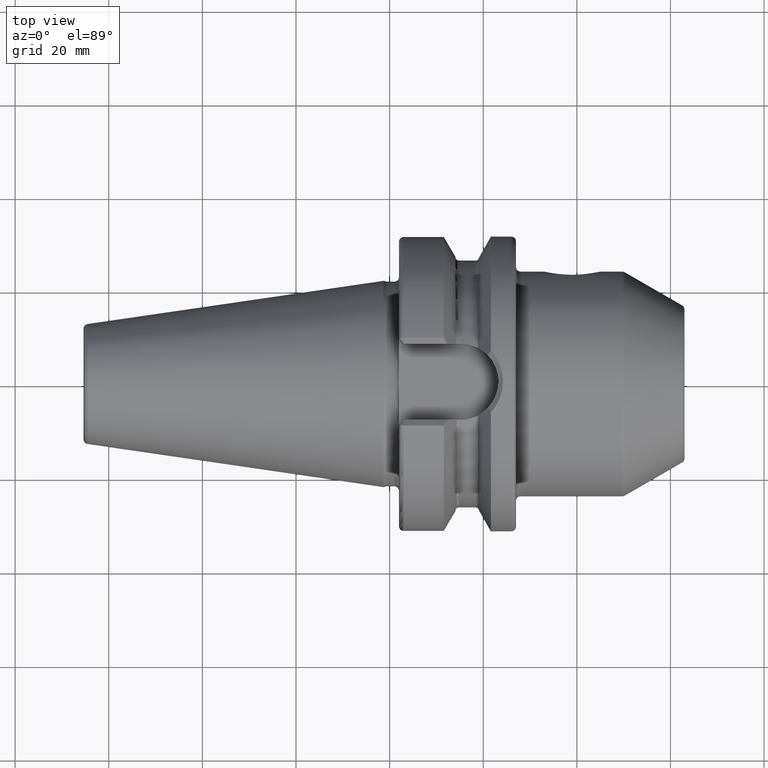
[diagram: clean part render]
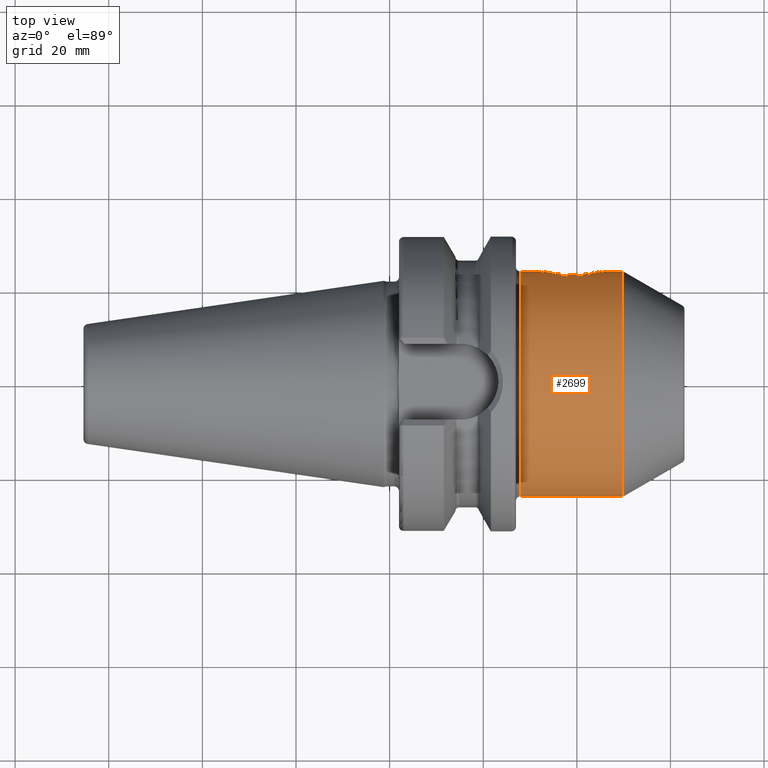
[diagram: same view with one face highlighted and labeled with its STEP entity id]
A machine part, top view. The second image highlights one B-rep face of the part: STEP entity #2699.
In plain terms, the highlighted cylindrical surface (partial cylindrical patch) has radius 24 mm, axis along (1, 0, 0).
Its self-contained STEP definition (entity closure, byte-faithful):
#856=CARTESIAN_POINT('',(4.973205080757E1,0.E0,0.E0));
#857=DIRECTION('',(-1.E0,0.E0,0.E0));
#858=DIRECTION('',(0.E0,-1.E0,0.E0));
#859=AXIS2_PLACEMENT_3D('',#856,#857,#858);
#861=CARTESIAN_POINT('',(2.8E1,0.E0,0.E0));
#862=DIRECTION('',(1.E0,0.E0,0.E0));
#863=DIRECTION('',(0.E0,1.E0,0.E0));
#864=AXIS2_PLACEMENT_3D('',#861,#862,#863);
#866=CARTESIAN_POINT('',(4.5E1,2.4E1,0.E0));
#867=CARTESIAN_POINT('',(4.5E1,2.4E1,3.668511090384E-1));
#868=CARTESIAN_POINT('',(4.493430291122E1,2.398343549512E1,1.090744288177E0));
#869=CARTESIAN_POINT('',(4.463170178380E1,2.390958246924E1,2.167808742937E0));
#870=CARTESIAN_POINT('',(4.413762659424E1,2.379676587072E1,3.165700197363E0));
#871=CARTESIAN_POINT('',(4.345994956941E1,2.365818524583E1,4.065373364471E0));
#872=CARTESIAN_POINT('',(4.263360409742E1,2.351466126429E1,4.818489201602E0));
#873=CARTESIAN_POINT('',(4.167271369838E1,2.338406388581E1,5.410237810502E0));
#874=CARTESIAN_POINT('',(4.064188429797E1,2.328768841151E1,5.806267129186E0));
#875=CARTESIAN_POINT('',(3.954710915606E1,2.323568156105E1,6.008705901759E0));
#876=CARTESIAN_POINT('',(3.845376052039E1,2.323565717152E1,6.008801998323E0));
#877=CARTESIAN_POINT('',(3.735879989026E1,2.328764316624E1,5.806439499221E0));
#878=CARTESIAN_POINT('',(3.632824707715E1,2.338394951438E1,5.410742200349E0));
#879=CARTESIAN_POINT('',(3.536671825619E1,2.351461233329E1,4.818698613390E0));
#880=CARTESIAN_POINT('',(3.454108651352E1,2.365799074726E1,4.066507728899E0));
#881=CARTESIAN_POINT('',(3.386254694974E1,2.379672294068E1,3.166045267208E0));
#882=CARTESIAN_POINT('',(3.336859926991E1,2.390951268291E1,2.168587725770E0));
#883=CARTESIAN_POINT('',(3.306565124648E1,2.398344554754E1,1.090744375021E0));
#884=CARTESIAN_POINT('',(3.3E1,2.4E1,3.668392981218E-1));
#885=CARTESIAN_POINT('',(3.3E1,2.4E1,0.E0));
#902=DIRECTION('',(-1.E0,0.E0,1.360115647069E-12));
#903=VECTOR('',#902,4.732050807569E0);
#904=CARTESIAN_POINT('',(4.973205080757E1,2.4E1,-6.434666769941E-12));
#905=LINE('',#904,#903);
#927=DIRECTION('',(-1.E0,0.E0,2.586361680379E-13));
#928=VECTOR('',#927,5.E0);
#929=CARTESIAN_POINT('',(3.3E1,2.4E1,0.E0));
#930=LINE('',#929,#928);
#936=DIRECTION('',(-1.E0,0.E0,-3.552970242887E-13));
#937=VECTOR('',#936,2.173205080757E1);
#938=CARTESIAN_POINT('',(4.973205080757E1,-2.4E1,6.423269366146E-12));
#939=LINE('',#938,#937);
#1525=VERTEX_POINT('',#866);
#1526=VERTEX_POINT('',#885);
#1533=CARTESIAN_POINT('',(2.8E1,-2.4E1,0.E0));
#1534=CARTESIAN_POINT('',(2.8E1,2.4E1,0.E0));
#1535=VERTEX_POINT('',#1533);
#1536=VERTEX_POINT('',#1534);
#1537=CARTESIAN_POINT('',(4.973205080757E1,2.4E1,0.E0));
#1538=CARTESIAN_POINT('',(4.973205080757E1,-2.4E1,0.E0));
#1539=VERTEX_POINT('',#1537);
#1540=VERTEX_POINT('',#1538);
#2681=CARTESIAN_POINT('',(2.52E1,0.E0,0.E0));
#2682=DIRECTION('',(1.E0,0.E0,0.E0));
#2683=DIRECTION('',(0.E0,-1.E0,0.E0));
#2684=AXIS2_PLACEMENT_3D('',#2681,#2682,#2683);
#2685=CYLINDRICAL_SURFACE('',#2684,2.4E1);
#2687=ORIENTED_EDGE('',*,*,#2686,.F.);
#2689=ORIENTED_EDGE('',*,*,#2688,.T.);
#2690=ORIENTED_EDGE('',*,*,#2673,.F.);
#2692=ORIENTED_EDGE('',*,*,#2691,.F.);
#2694=ORIENTED_EDGE('',*,*,#2693,.F.);
#2696=ORIENTED_EDGE('',*,*,#2695,.F.);
#2697=EDGE_LOOP('',(#2687,#2689,#2690,#2692,#2694,#2696));
#2698=FACE_OUTER_BOUND('',#2697,.F.);
#2699=ADVANCED_FACE('',(#2698),#2685,.T.);
#860=CIRCLE('',#859,2.4E1);
#865=CIRCLE('',#864,2.4E1);
#886=B_SPLINE_CURVE_WITH_KNOTS('',3,(#866,#867,#868,#869,#870,#871,#872,#873,
#874,#875,#876,#877,#878,#879,#880,#881,#882,#883,#884,#885),.UNSPECIFIED.,.F.,
.F.,(4,1,1,1,1,1,1,1,1,1,1,1,1,1,1,1,1,4),(0.E0,5.882352941176E-2,
1.176470588235E-1,1.764705882353E-1,2.352941176471E-1,2.941176470588E-1,
3.529411764706E-1,4.117647058824E-1,4.705882352941E-1,5.294117647059E-1,
5.882352941176E-1,6.470588235294E-1,7.058823529412E-1,7.647058823529E-1,
8.235294117647E-1,8.823529411765E-1,9.411764705882E-1,1.E0),.UNSPECIFIED.);
#2673=EDGE_CURVE('',#1536,#1535,#865,.T.);
#2686=EDGE_CURVE('',#1540,#1539,#860,.T.);
#2688=EDGE_CURVE('',#1540,#1535,#939,.T.);
#2691=EDGE_CURVE('',#1526,#1536,#930,.T.);
#2693=EDGE_CURVE('',#1525,#1526,#886,.T.);
#2695=EDGE_CURVE('',#1539,#1525,#905,.T.);